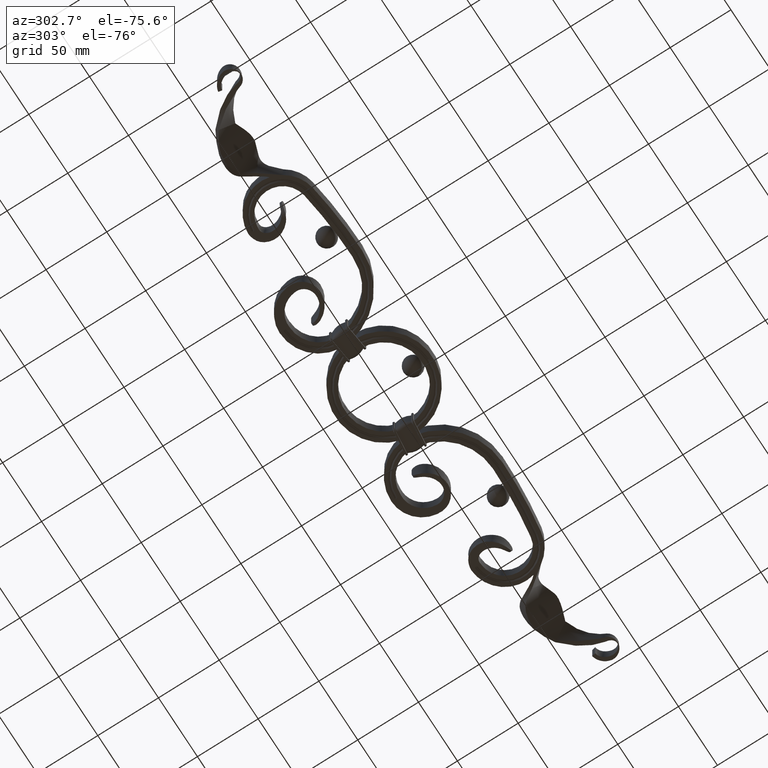
[diagram: clean part render]
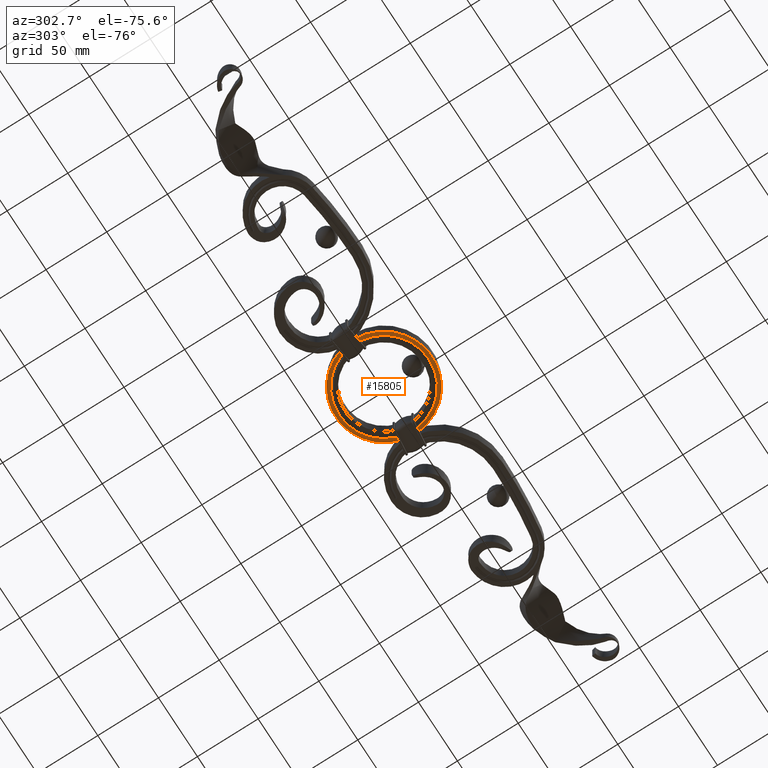
[diagram: same view with one face highlighted and labeled with its STEP entity id]
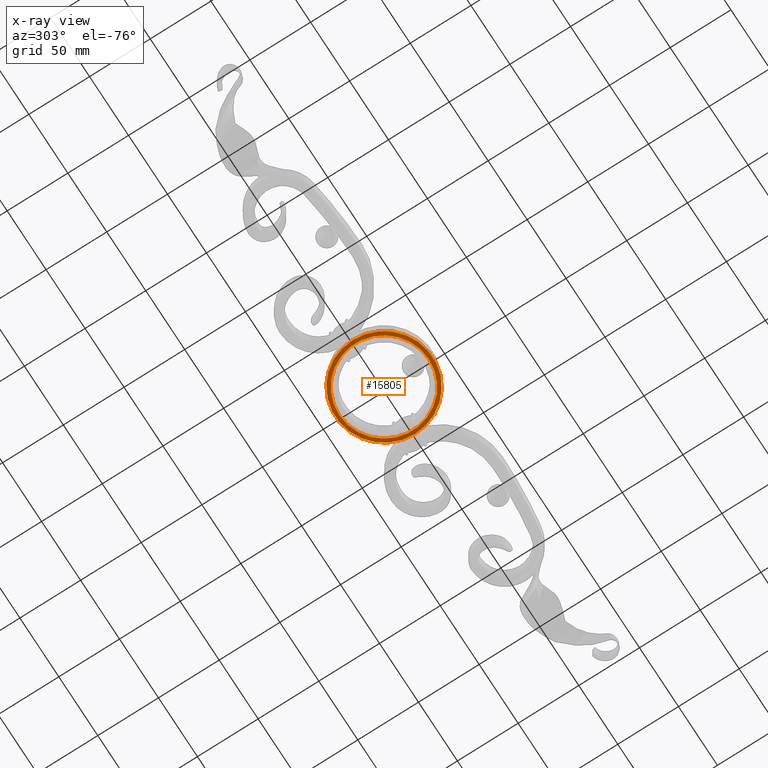
[diagram: x-ray of the same camera — body ghosted, the highlighted face saturated]
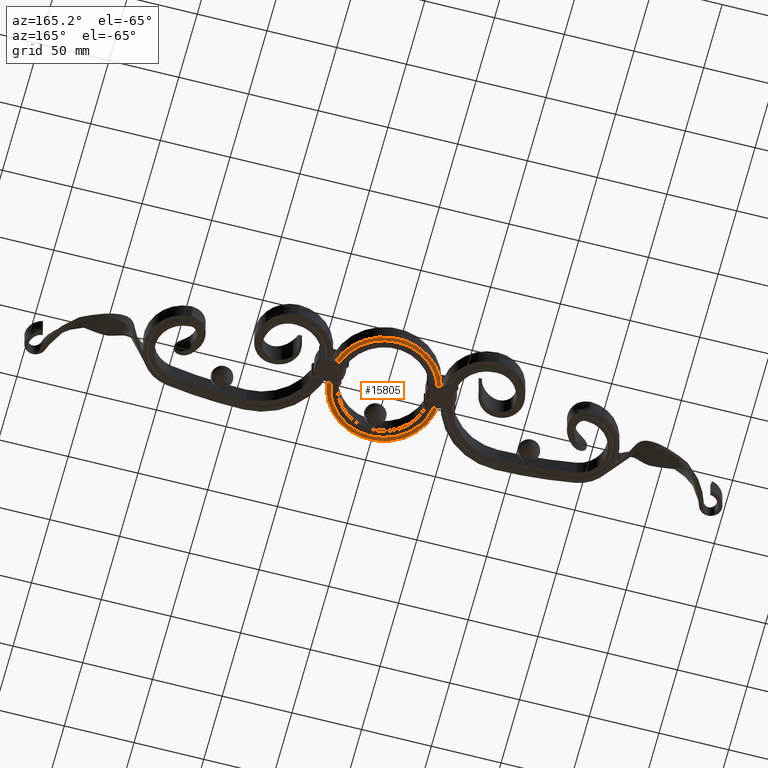
[diagram: same view with one face highlighted and labeled with its STEP entity id]
A machine part, auxiliary view. The second image highlights one B-rep face of the part: STEP entity #15805.
The next image is the same camera in x-ray: the body ghosted, the highlighted face saturated — about 0% of this face is hidden behind the body in this view.
A second angle (auxiliary view) of the same face is appended — the face is thin or edge-on in the first view.
In plain terms, the highlighted planar face has unit normal (0, 0, 1).
Its self-contained STEP definition (entity closure, byte-faithful):
#1038 = EDGE_CURVE ( 'NONE', #3900, #3900, #11875, .T. ) ;
#2005 = AXIS2_PLACEMENT_3D ( 'NONE', #6638, #6985, #6729 ) ;
#2390 = ORIENTED_EDGE ( 'NONE', *, *, #1038, .T. ) ;
#3900 = VERTEX_POINT ( 'NONE', #10117 ) ;
#5002 = PLANE ( 'NONE',  #2005 ) ;
#6638 = CARTESIAN_POINT ( 'NONE',  ( 0.000000000000000000, 0.000000000000000000, -8.000000000000000000 ) ) ;
#6729 = DIRECTION ( 'NONE',  ( 1.000000000000000000, 0.000000000000000000, -0.000000000000000000 ) ) ;
#6985 = DIRECTION ( 'NONE',  ( 0.000000000000000000, 0.000000000000000000, 1.000000000000000000 ) ) ;
#8345 = DIRECTION ( 'NONE',  ( 1.000000000000000000, 0.000000000000000000, 0.000000000000000000 ) ) ;
#8972 = FACE_OUTER_BOUND ( 'NONE', #24730, .T. ) ;
#10117 = CARTESIAN_POINT ( 'NONE',  ( 0.000000000000000000, -37.00000000000000711, -8.000000000000000000 ) ) ;
#10495 = CARTESIAN_POINT ( 'NONE',  ( 0.000000000000000000, 0.000000000000000000, -8.000000000000000000 ) ) ;
#11875 = CIRCLE ( 'NONE', #23472, 37.00000000000000711 ) ;
#12371 = DIRECTION ( 'NONE',  ( 0.000000000000000000, 0.000000000000000000, 1.000000000000000000 ) ) ;
#13260 = ORIENTED_EDGE ( 'NONE', *, *, #14466, .F. ) ;
#13556 = FACE_BOUND ( 'NONE', #24198, .T. ) ;
#14466 = EDGE_CURVE ( 'NONE', #17687, #17687, #20018, .T. ) ;
#15805 = ADVANCED_FACE ( 'NONE', ( #8972, #13556 ), #5002, .F. ) ;
#16316 = CARTESIAN_POINT ( 'NONE',  ( 0.000000000000000000, 0.000000000000000000, -8.000000000000000000 ) ) ;
#17687 = VERTEX_POINT ( 'NONE', #22061 ) ;
#20018 = CIRCLE ( 'NONE', #22421, 40.00000000000000000 ) ;
#20187 = DIRECTION ( 'NONE',  ( -0.000000000000000000, -0.000000000000000000, 1.000000000000000000 ) ) ;
#22061 = CARTESIAN_POINT ( 'NONE',  ( 40.00000000000000000, 0.000000000000000000, -8.000000000000000000 ) ) ;
#22291 = DIRECTION ( 'NONE',  ( 0.000000000000000000, -1.000000000000000000, 0.000000000000000000 ) ) ;
#22421 = AXIS2_PLACEMENT_3D ( 'NONE', #16316, #12371, #8345 ) ;
#23472 = AXIS2_PLACEMENT_3D ( 'NONE', #10495, #20187, #22291 ) ;
#24198 = EDGE_LOOP ( 'NONE', ( #2390 ) ) ;
#24730 = EDGE_LOOP ( 'NONE', ( #13260 ) ) ;